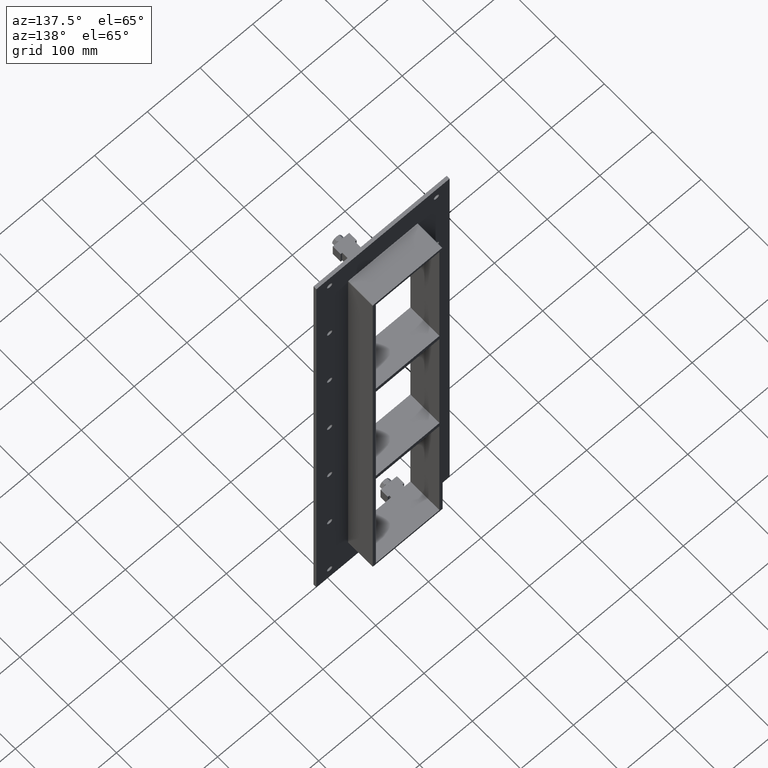
[diagram: clean part render]
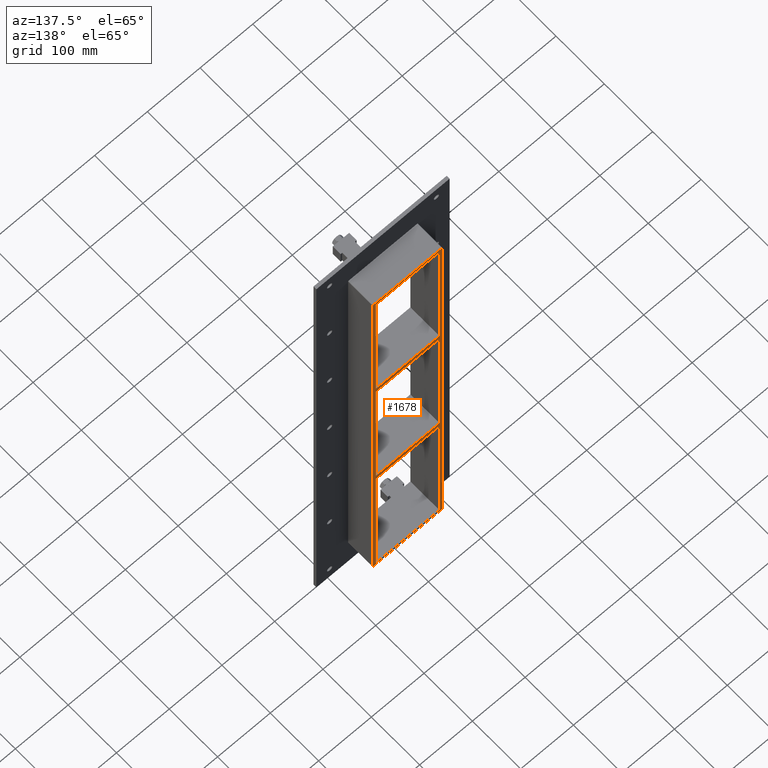
[diagram: same view with one face highlighted and labeled with its STEP entity id]
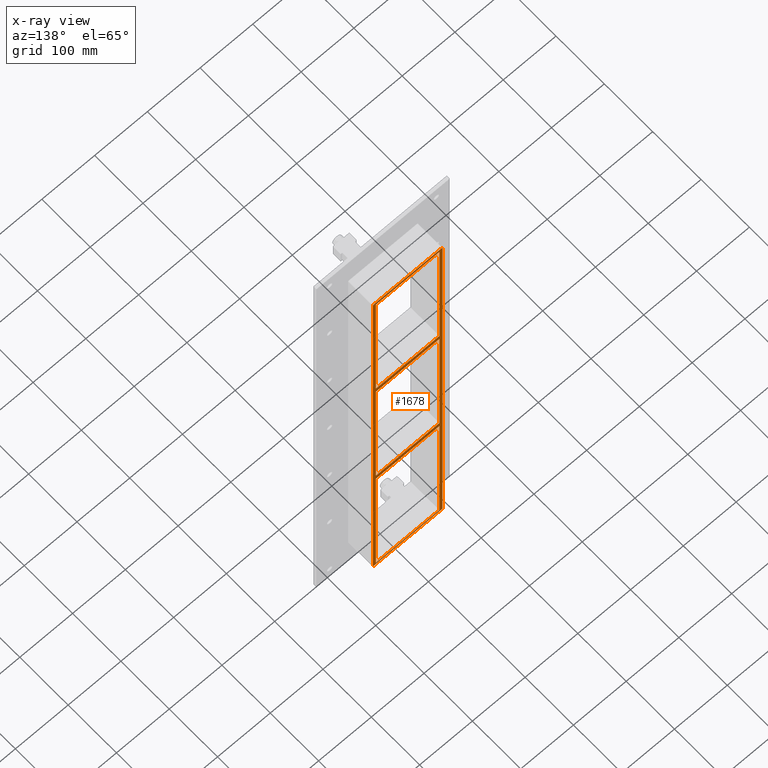
[diagram: x-ray of the same camera — body ghosted, the highlighted face saturated]
A machine part, auxiliary view. The second image highlights one B-rep face of the part: STEP entity #1678.
The next image is the same camera in x-ray: the body ghosted, the highlighted face saturated — about 0% of this face is hidden behind the body in this view.
In plain terms, the highlighted planar face has unit normal (0, 1, 0).
Its self-contained STEP definition (entity closure, byte-faithful):
#475=CARTESIAN_POINT('',(-60.249999999998735,57.0,138.99999999998886));
#476=VERTEX_POINT('',#475);
#483=CARTESIAN_POINT('',(60.249999999996369,57.0,138.99999999998903));
#484=VERTEX_POINT('',#483);
#485=CARTESIAN_POINT('',(60.249999999996362,57.0,138.99999999998903));
#486=DIRECTION('',(-1.0,0.0,0.0));
#487=VECTOR('',#486,120.49999999999511);
#488=LINE('',#485,#487);
#489=EDGE_CURVE('',#484,#476,#488,.T.);
#515=CARTESIAN_POINT('',(60.249999999999602,57.0,149.00000000000023));
#516=VERTEX_POINT('',#515);
#523=CARTESIAN_POINT('',(-60.249999999998735,57.0,149.00000000000023));
#524=VERTEX_POINT('',#523);
#525=CARTESIAN_POINT('',(-60.249999999998735,57.0,149.00000000000023));
#526=DIRECTION('',(1.0,0.0,0.0));
#527=VECTOR('',#526,120.49999999999834);
#528=LINE('',#525,#527);
#529=EDGE_CURVE('',#524,#516,#528,.T.);
#546=CARTESIAN_POINT('',(-60.25,57.0,427.0));
#547=VERTEX_POINT('',#546);
#548=CARTESIAN_POINT('',(-60.25,57.0,427.00000000000011));
#549=DIRECTION('',(0.0,0.0,-1.0));
#550=VECTOR('',#549,277.99999999999983);
#551=LINE('',#548,#550);
#552=EDGE_CURVE('',#547,#524,#551,.T.);
#577=CARTESIAN_POINT('',(60.249999999999602,57.0,-138.99999999999977));
#578=VERTEX_POINT('',#577);
#579=CARTESIAN_POINT('',(60.25,57.0,-138.99999999999983));
#580=DIRECTION('',(0.0,0.0,1.0));
#581=VECTOR('',#580,277.99999999998886);
#582=LINE('',#579,#581);
#583=EDGE_CURVE('',#578,#484,#582,.T.);
#616=CARTESIAN_POINT('',(60.25,57.0,427.0));
#617=VERTEX_POINT('',#616);
#624=CARTESIAN_POINT('',(60.25,57.0,149.00000000000023));
#625=DIRECTION('',(0.0,0.0,1.0));
#626=VECTOR('',#625,277.99999999999977);
#627=LINE('',#624,#626);
#628=EDGE_CURVE('',#516,#617,#627,.T.);
#648=CARTESIAN_POINT('',(-60.249999999998735,57.0,-149.00000000001114));
#649=VERTEX_POINT('',#648);
#656=CARTESIAN_POINT('',(60.249999999996369,57.0,-149.00000000001097));
#657=VERTEX_POINT('',#656);
#658=CARTESIAN_POINT('',(60.249999999996362,57.0,-149.00000000001097));
#659=DIRECTION('',(-1.0,0.0,0.0));
#660=VECTOR('',#659,120.49999999999511);
#661=LINE('',#658,#660);
#662=EDGE_CURVE('',#657,#649,#661,.T.);
#687=CARTESIAN_POINT('',(-60.249999999998735,57.0,-138.99999999999977));
#688=VERTEX_POINT('',#687);
#689=CARTESIAN_POINT('',(-60.249999999998735,57.0,-138.99999999999977));
#690=DIRECTION('',(1.0,0.0,0.0));
#691=VECTOR('',#690,120.49999999999834);
#692=LINE('',#689,#691);
#693=EDGE_CURVE('',#688,#578,#692,.T.);
#717=CARTESIAN_POINT('',(-60.25,57.0,138.99999999998892));
#718=DIRECTION('',(0.0,0.0,-1.0));
#719=VECTOR('',#718,277.99999999998869);
#720=LINE('',#717,#719);
#721=EDGE_CURVE('',#476,#688,#720,.T.);
#732=CARTESIAN_POINT('',(60.25,57.0,-427.0));
#733=VERTEX_POINT('',#732);
#734=CARTESIAN_POINT('',(60.25,57.0,-427.00000000000006));
#735=DIRECTION('',(0.0,0.0,1.0));
#736=VECTOR('',#735,277.99999999998909);
#737=LINE('',#734,#736);
#738=EDGE_CURVE('',#733,#657,#737,.T.);
#1143=CARTESIAN_POINT('',(-60.25,57.0,-427.0));
#1144=VERTEX_POINT('',#1143);
#1151=CARTESIAN_POINT('',(-60.25,57.0,-149.00000000001114));
#1152=DIRECTION('',(0.0,0.0,-1.0));
#1153=VECTOR('',#1152,277.99999999998886);
#1154=LINE('',#1151,#1153);
#1155=EDGE_CURVE('',#649,#1144,#1154,.T.);
#1254=CARTESIAN_POINT('',(66.25,57.0,-431.0));
#1255=VERTEX_POINT('',#1254);
#1327=CARTESIAN_POINT('',(-66.25,57.0,-431.0));
#1328=VERTEX_POINT('',#1327);
#1401=CARTESIAN_POINT('',(-66.25,57.0,431.0));
#1402=VERTEX_POINT('',#1401);
#1409=CARTESIAN_POINT('',(-66.25,57.0,-431.0));
#1410=DIRECTION('',(0.0,0.0,1.0));
#1411=VECTOR('',#1410,862.0);
#1412=LINE('',#1409,#1411);
#1413=EDGE_CURVE('',#1328,#1402,#1412,.T.);
#1466=CARTESIAN_POINT('',(-66.25,57.0,-431.0));
#1467=DIRECTION('',(1.0,0.0,0.0));
#1468=VECTOR('',#1467,132.5);
#1469=LINE('',#1466,#1468);
#1470=EDGE_CURVE('',#1328,#1255,#1469,.T.);
#1484=CARTESIAN_POINT('',(-64.25,57.0,433.00000000000006));
#1485=VERTEX_POINT('',#1484);
#1492=CARTESIAN_POINT('',(-64.25,57.0,431.0));
#1493=DIRECTION('',(0.0,-1.0,0.0));
#1494=DIRECTION('',(-0.707106781186541,0.0,0.707106781186554));
#1495=AXIS2_PLACEMENT_3D('',#1492,#1493,#1494);
#1496=CIRCLE('',#1495,2.0);
#1497=EDGE_CURVE('',#1485,#1402,#1496,.T.);
#1509=CARTESIAN_POINT('',(64.25,57.0,433.00000000000006));
#1510=VERTEX_POINT('',#1509);
#1517=CARTESIAN_POINT('',(-64.25,57.0,433.00000000000006));
#1518=DIRECTION('',(1.0,0.0,0.0));
#1519=VECTOR('',#1518,128.5);
#1520=LINE('',#1517,#1519);
#1521=EDGE_CURVE('',#1485,#1510,#1520,.T.);
#1577=CARTESIAN_POINT('',(66.25,57.0,431.0));
#1578=VERTEX_POINT('',#1577);
#1585=CARTESIAN_POINT('',(64.25,57.0,431.0));
#1586=DIRECTION('',(0.0,-1.0,0.0));
#1587=DIRECTION('',(0.707106781186541,0.0,0.707106781186554));
#1588=AXIS2_PLACEMENT_3D('',#1585,#1586,#1587);
#1589=CIRCLE('',#1588,2.0);
#1590=EDGE_CURVE('',#1578,#1510,#1589,.T.);
#1603=CARTESIAN_POINT('',(66.25,57.0,431.0));
#1604=DIRECTION('',(0.0,0.0,-1.0));
#1605=VECTOR('',#1604,862.0);
#1606=LINE('',#1603,#1605);
#1607=EDGE_CURVE('',#1578,#1255,#1606,.T.);
#1619=CARTESIAN_POINT('',(60.250000000000014,57.0,427.00000000000011));
#1620=DIRECTION('',(-1.0,0.0,0.0));
#1621=VECTOR('',#1620,120.50000000000001);
#1622=LINE('',#1619,#1621);
#1623=EDGE_CURVE('',#617,#547,#1622,.T.);
#1638=CARTESIAN_POINT('',(-60.250000000000014,57.0,-427.0));
#1639=DIRECTION('',(1.0,0.0,0.0));
#1640=VECTOR('',#1639,120.50000000000001);
#1641=LINE('',#1638,#1640);
#1642=EDGE_CURVE('',#1144,#733,#1641,.T.);
#1647=CARTESIAN_POINT('',(0.0,57.0,0.0));
#1648=DIRECTION('',(0.0,1.0,0.0));
#1649=DIRECTION('',(0.0,0.0,1.0));
#1650=AXIS2_PLACEMENT_3D('',#1647,#1648,#1649);
#1651=PLANE('',#1650);
#1652=ORIENTED_EDGE('',*,*,#1470,.F.);
#1653=ORIENTED_EDGE('',*,*,#1413,.T.);
#1654=ORIENTED_EDGE('',*,*,#1497,.F.);
#1655=ORIENTED_EDGE('',*,*,#1521,.T.);
#1656=ORIENTED_EDGE('',*,*,#1590,.F.);
#1657=ORIENTED_EDGE('',*,*,#1607,.T.);
#1658=EDGE_LOOP('',(#1652,#1653,#1654,#1655,#1656,#1657));
#1659=FACE_OUTER_BOUND('',#1658,.T.);
#1660=ORIENTED_EDGE('',*,*,#721,.T.);
#1661=ORIENTED_EDGE('',*,*,#693,.T.);
#1662=ORIENTED_EDGE('',*,*,#583,.T.);
#1663=ORIENTED_EDGE('',*,*,#489,.T.);
#1664=EDGE_LOOP('',(#1660,#1661,#1662,#1663));
#1665=FACE_BOUND('',#1664,.T.);
#1666=ORIENTED_EDGE('',*,*,#1155,.T.);
#1667=ORIENTED_EDGE('',*,*,#1642,.T.);
#1668=ORIENTED_EDGE('',*,*,#738,.T.);
#1669=ORIENTED_EDGE('',*,*,#662,.T.);
#1670=EDGE_LOOP('',(#1666,#1667,#1668,#1669));
#1671=FACE_BOUND('',#1670,.T.);
#1672=ORIENTED_EDGE('',*,*,#529,.T.);
#1673=ORIENTED_EDGE('',*,*,#628,.T.);
#1674=ORIENTED_EDGE('',*,*,#1623,.T.);
#1675=ORIENTED_EDGE('',*,*,#552,.T.);
#1676=EDGE_LOOP('',(#1672,#1673,#1674,#1675));
#1677=FACE_BOUND('',#1676,.T.);
#1678=ADVANCED_FACE('',(#1659,#1665,#1671,#1677),#1651,.T.);